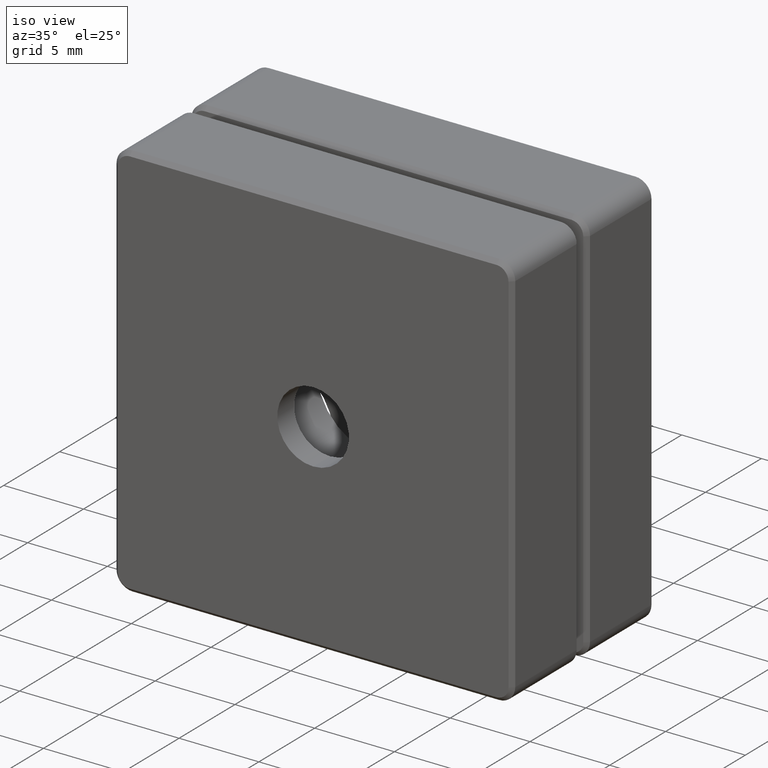
[diagram: clean part render]
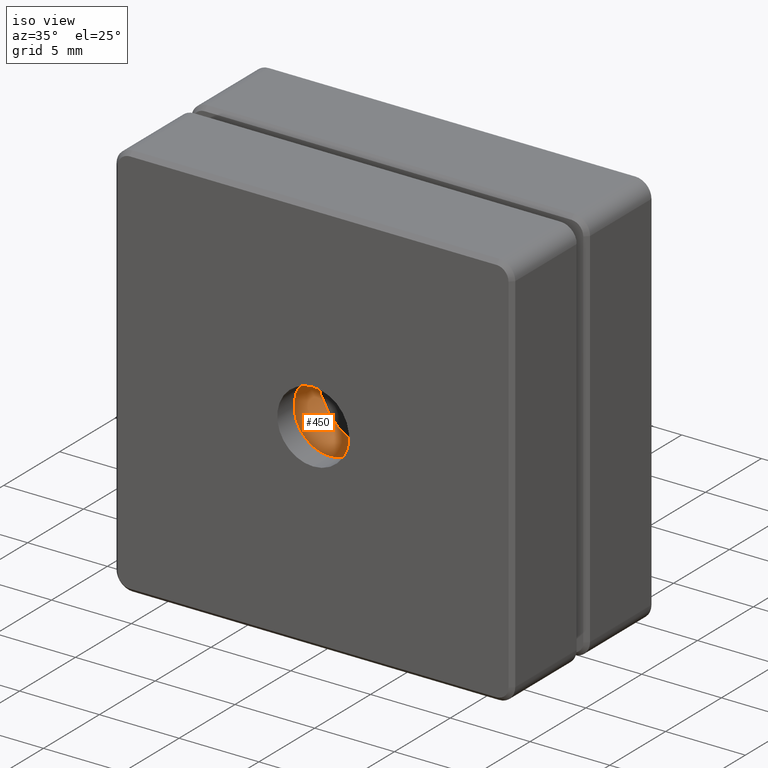
[diagram: same view with one face highlighted and labeled with its STEP entity id]
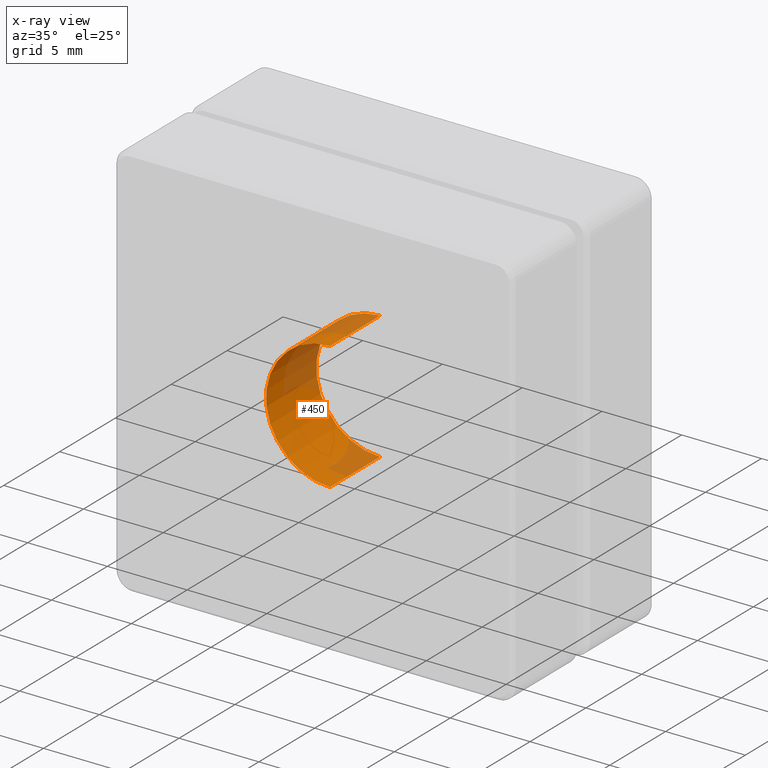
[diagram: x-ray of the same camera — body ghosted, the highlighted face saturated]
A machine part, iso view. The second image highlights one B-rep face of the part: STEP entity #450.
The next image is the same camera in x-ray: the body ghosted, the highlighted face saturated — about 31% of this face is hidden behind the body in this view.
In plain terms, the highlighted cylindrical surface (partial cylindrical patch) has radius 4 mm, axis along (-0, 1, -0).
Its self-contained STEP definition (entity closure, byte-faithful):
#12 = DIRECTION ( 'NONE',  ( -0.0000000000000000000, 1.000000000000000000, -0.0000000000000000000 ) ) ;
#26 = CARTESIAN_POINT ( 'NONE',  ( 0.0000000000000000000, 3.000000000000000000, 0.0000000000000000000 ) ) ;
#58 = EDGE_CURVE ( 'NONE', #1670, #3443, #2337, .T. ) ;
#97 = CARTESIAN_POINT ( 'NONE',  ( 4.898587196589411843E-16, -1.499999999999999556, -3.999999999999999112 ) ) ;
#313 = CARTESIAN_POINT ( 'NONE',  ( 4.898587196589408884E-16, 3.000000000000000000, -3.999999999999996447 ) ) ;
#377 = AXIS2_PLACEMENT_3D ( 'NONE', #26, #12, #1629 ) ;
#381 = DIRECTION ( 'NONE',  ( -0.0000000000000000000, 1.000000000000000000, -0.0000000000000000000 ) ) ;
#440 = ORIENTED_EDGE ( 'NONE', *, *, #2834, .F. ) ;
#450 = ADVANCED_FACE ( 'NONE', ( #2591 ), #1008, .F. ) ;
#475 = DIRECTION ( 'NONE',  ( -0.0000000000000000000, 1.000000000000000000, -0.0000000000000000000 ) ) ;
#681 = ORIENTED_EDGE ( 'NONE', *, *, #58, .T. ) ;
#755 = DIRECTION ( 'NONE',  ( 0.0000000000000000000, 0.0000000000000000000, 1.000000000000000000 ) ) ;
#895 = CARTESIAN_POINT ( 'NONE',  ( 4.898587196589406912E-16, 3.000000000000000000, -3.999999999999993339 ) ) ;
#1008 = CYLINDRICAL_SURFACE ( 'NONE', #2201, 3.999999999999996447 ) ;
#1013 = EDGE_CURVE ( 'NONE', #1054, #3443, #1841, .T. ) ;
#1054 = VERTEX_POINT ( 'NONE', #2469 ) ;
#1400 = CARTESIAN_POINT ( 'NONE',  ( 0.0000000000000000000, 3.000000000000000000, 3.999999999999996447 ) ) ;
#1587 = CIRCLE ( 'NONE', #1764, 3.999999999999999112 ) ;
#1629 = DIRECTION ( 'NONE',  ( 0.0000000000000000000, 0.0000000000000000000, 1.000000000000000000 ) ) ;
#1670 = VERTEX_POINT ( 'NONE', #895 ) ;
#1764 = AXIS2_PLACEMENT_3D ( 'NONE', #3075, #381, #2506 ) ;
#1841 = LINE ( 'NONE', #1400, #2882 ) ;
#1905 = ORIENTED_EDGE ( 'NONE', *, *, #1013, .F. ) ;
#1929 = ORIENTED_EDGE ( 'NONE', *, *, #2146, .T. ) ;
#2146 = EDGE_CURVE ( 'NONE', #2278, #1670, #2452, .T. ) ;
#2201 = AXIS2_PLACEMENT_3D ( 'NONE', #2617, #475, #755 ) ;
#2278 = VERTEX_POINT ( 'NONE', #97 ) ;
#2337 = CIRCLE ( 'NONE', #377, 3.999999999999993339 ) ;
#2391 = EDGE_LOOP ( 'NONE', ( #440, #1929, #681, #1905 ) ) ;
#2452 = LINE ( 'NONE', #313, #2706 ) ;
#2469 = CARTESIAN_POINT ( 'NONE',  ( 0.0000000000000000000, -1.499999999999999556, 3.999999999999999112 ) ) ;
#2506 = DIRECTION ( 'NONE',  ( 0.0000000000000000000, 0.0000000000000000000, 1.000000000000000000 ) ) ;
#2591 = FACE_OUTER_BOUND ( 'NONE', #2391, .T. ) ;
#2617 = CARTESIAN_POINT ( 'NONE',  ( 0.0000000000000000000, 3.000000000000000000, 0.0000000000000000000 ) ) ;
#2706 = VECTOR ( 'NONE', #2950, 1000.000000000000000 ) ;
#2834 = EDGE_CURVE ( 'NONE', #2278, #1054, #1587, .T. ) ;
#2882 = VECTOR ( 'NONE', #3018, 1000.000000000000000 ) ;
#2950 = DIRECTION ( 'NONE',  ( -0.0000000000000000000, 1.000000000000000000, -0.0000000000000000000 ) ) ;
#3018 = DIRECTION ( 'NONE',  ( -0.0000000000000000000, 1.000000000000000000, -0.0000000000000000000 ) ) ;
#3075 = CARTESIAN_POINT ( 'NONE',  ( 0.0000000000000000000, -1.499999999999999556, 0.0000000000000000000 ) ) ;
#3132 = CARTESIAN_POINT ( 'NONE',  ( 0.0000000000000000000, 3.000000000000000000, 3.999999999999993339 ) ) ;
#3443 = VERTEX_POINT ( 'NONE', #3132 ) ;